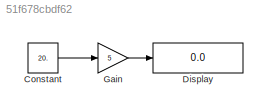
MODEL slx_51f678cbdf62
KIND model
BLOCK [Constant] Constant
  Value = 20.
BLOCK [Display] Display
  Decimation = 1
  Ports = [1]
BLOCK [Gain] Gain
  Gain = 5
  OutDataTypeStr = Inherit: Inherit via internal rule
  ParamDataTypeStr = Inherit: Inherit via internal rule
  SaturateOnIntegerOverflow = off
LINE Constant:1 -> Gain:1
LINE Gain:1 -> Display:1
